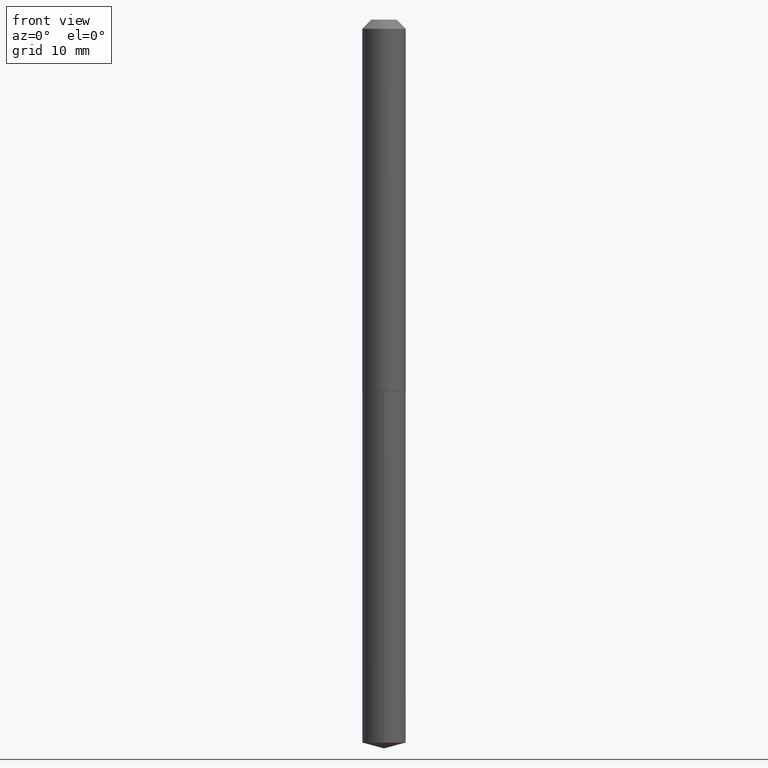
[diagram: clean part render]
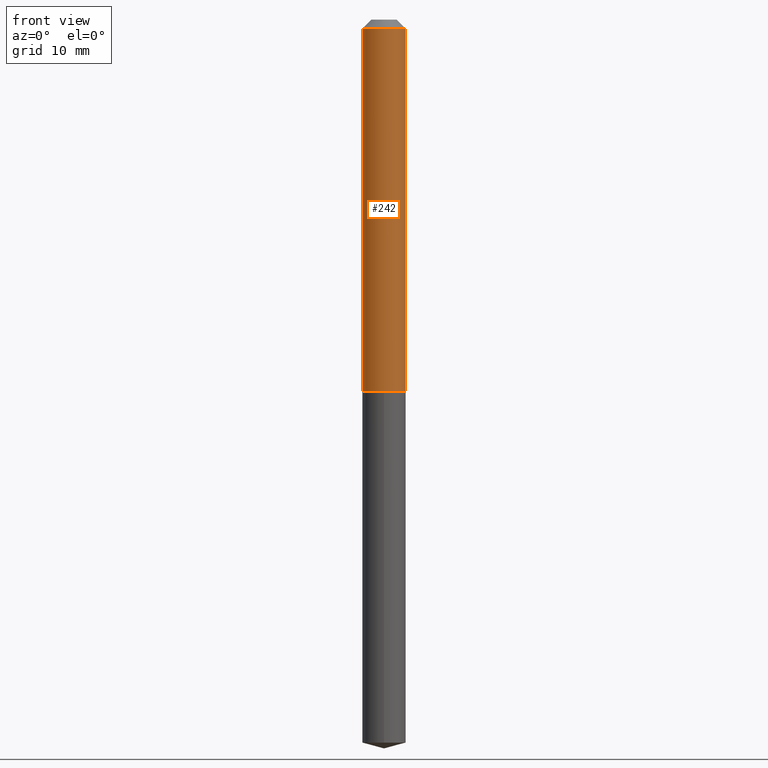
[diagram: same view with one face highlighted and labeled with its STEP entity id]
A machine part, front view. The second image highlights one B-rep face of the part: STEP entity #242.
In plain terms, the highlighted cylindrical surface (edge-blend (fillet) strip) has radius 1.8987 mm, axis along (-0, 0, 1).
Its self-contained STEP definition (entity closure, byte-faithful):
#3 = CARTESIAN_POINT ( 'NONE',  ( 0.000000000000000000, 0.000000000000000000, 0.000000000000000000 ) ) ;
#5 = EDGE_CURVE ( 'NONE', #209, #138, #223, .T. ) ;
#34 = CARTESIAN_POINT ( 'NONE',  ( -0.07475000000000014966, -3.917016530705492240E-15, -1.274000000000000021 ) ) ;
#45 = AXIS2_PLACEMENT_3D ( 'NONE', #236, #362, #93 ) ;
#54 = EDGE_LOOP ( 'NONE', ( #259, #258, #313, #166 ) ) ;
#82 = DIRECTION ( 'NONE',  ( -2.445468806185136877E-29, 3.491481338843145188E-15, 1.000000000000000000 ) ) ;
#93 = DIRECTION ( 'NONE',  ( 1.000000000000000000, -6.982962677686270655E-15, 0.000000000000000000 ) ) ;
#96 = CIRCLE ( 'NONE', #247, 0.07474999999999999700 ) ;
#102 = CARTESIAN_POINT ( 'NONE',  ( 0.07474999999999999700, -6.310852519958974032E-16, -0.03125000000000019429 ) ) ;
#105 = CARTESIAN_POINT ( 'NONE',  ( 0.07475000000000006639, -5.219764601570489928E-16, 3.644942139907465396E-30 ) ) ;
#110 = EDGE_CURVE ( 'NONE', #288, #191, #246, .T. ) ;
#117 = DIRECTION ( 'NONE',  ( 1.000000000000000000, -6.982962677686266711E-15, 0.000000000000000000 ) ) ;
#138 = VERTEX_POINT ( 'NONE', #156 ) ;
#156 = CARTESIAN_POINT ( 'NONE',  ( -0.07474999999999999700, -1.747497313781831905E-15, -0.03125000000000019429 ) ) ;
#163 = CIRCLE ( 'NONE', #45, 0.07475000000000014966 ) ;
#165 = EDGE_CURVE ( 'NONE', #209, #288, #163, .T. ) ;
#166 = ORIENTED_EDGE ( 'NONE', *, *, #319, .F. ) ;
#189 = DIRECTION ( 'NONE',  ( -2.445468806185136877E-29, 3.491481338843145188E-15, 1.000000000000000000 ) ) ;
#191 = VERTEX_POINT ( 'NONE', #102 ) ;
#209 = VERTEX_POINT ( 'NONE', #34 ) ;
#210 = DIRECTION ( 'NONE',  ( 1.000000000000000000, -6.982962677686268288E-15, 4.876176775795935793E-29 ) ) ;
#223 = LINE ( 'NONE', #350, #315 ) ;
#236 = CARTESIAN_POINT ( 'NONE',  ( 3.115527259079864567E-29, -4.448147225686167798E-15, -1.274000000000000021 ) ) ;
#240 = FACE_OUTER_BOUND ( 'NONE', #54, .T. ) ;
#242 = ADVANCED_FACE ( 'NONE', ( #240 ), #276, .T. ) ;
#246 = LINE ( 'NONE', #105, #343 ) ;
#247 = AXIS2_PLACEMENT_3D ( 'NONE', #385, #293, #117 ) ;
#258 = ORIENTED_EDGE ( 'NONE', *, *, #165, .T. ) ;
#259 = ORIENTED_EDGE ( 'NONE', *, *, #5, .F. ) ;
#276 = CYLINDRICAL_SURFACE ( 'NONE', #327, 0.07475000000000006639 ) ;
#288 = VERTEX_POINT ( 'NONE', #341 ) ;
#293 = DIRECTION ( 'NONE',  ( -2.445468806185136597E-29, 3.491481338843145583E-15, 1.000000000000000000 ) ) ;
#313 = ORIENTED_EDGE ( 'NONE', *, *, #110, .T. ) ;
#315 = VECTOR ( 'NONE', #82, 39.37007874015748143 ) ;
#319 = EDGE_CURVE ( 'NONE', #138, #191, #96, .T. ) ;
#327 = AXIS2_PLACEMENT_3D ( 'NONE', #3, #330, #210 ) ;
#330 = DIRECTION ( 'NONE',  ( -2.445468806185136597E-29, 3.491481338843145583E-15, 1.000000000000000000 ) ) ;
#341 = CARTESIAN_POINT ( 'NONE',  ( 0.07475000000000014966, -4.970123685843217876E-15, -1.274000000000000021 ) ) ;
#343 = VECTOR ( 'NONE', #189, 39.37007874015748143 ) ;
#350 = CARTESIAN_POINT ( 'NONE',  ( -0.07475000000000006639, 5.311306949806753607E-16, -3.676903979965545675E-30 ) ) ;
#362 = DIRECTION ( 'NONE',  ( -2.445468806185136597E-29, 3.491481338843145583E-15, 1.000000000000000000 ) ) ;
#385 = CARTESIAN_POINT ( 'NONE',  ( 7.642090019328599159E-31, -1.091087918388489774E-16, -0.03125000000000019429 ) ) ;